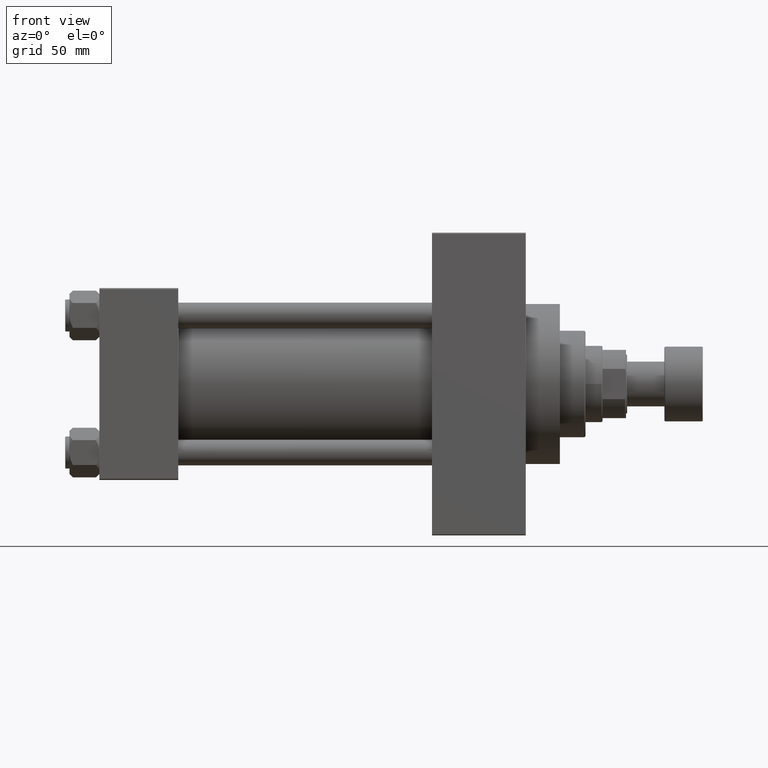
[diagram: clean part render]
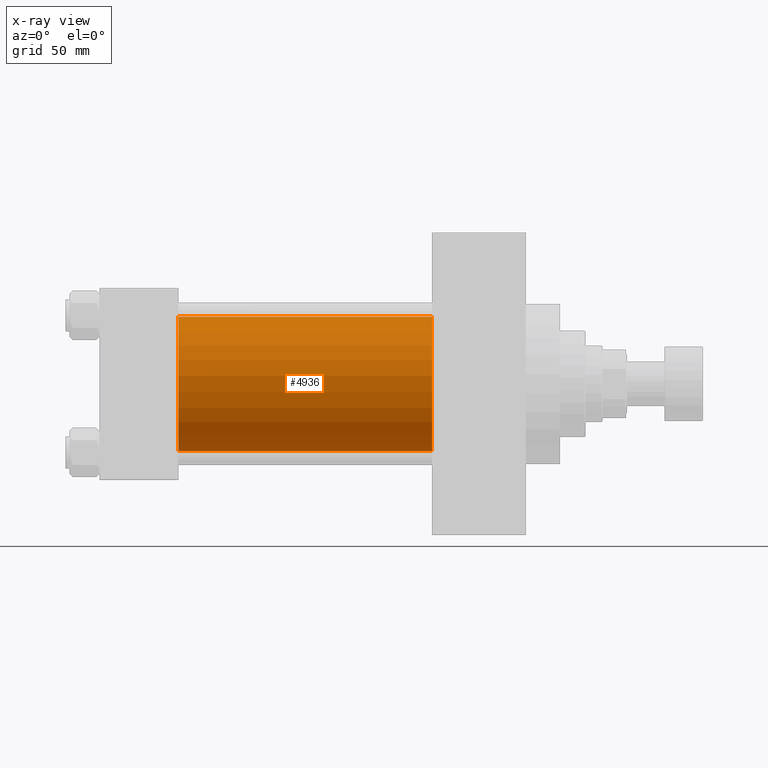
[diagram: x-ray — body ghosted, one internal face saturated and labeled with its STEP entity id]
A machine part, front view, then the same camera in x-ray: the body is ghosted and one INTERNAL B-rep face — a face not visible from any outside direction — is saturated and labeled: STEP entity #4936.
In plain terms, the highlighted cylindrical surface (partial cylindrical patch) has radius 31.5 mm, axis along (-1, -0, -0).
Its self-contained STEP definition (entity closure, byte-faithful):
#91 = CARTESIAN_POINT ( 'NONE',  ( 37.00000000000000000, 1.255552203348951850E-15, -31.50000000000000000 ) ) ;
#3938 = CARTESIAN_POINT ( 'NONE',  ( 156.0000000000000000, -2.602085213965210642E-15, 31.50000000000000000 ) ) ;
#4574 = LINE ( 'NONE', #12273, #33680 ) ;
#4936 = ADVANCED_FACE ( 'NONE', ( #31605 ), #9411, .F. ) ;
#5570 = CIRCLE ( 'NONE', #14782, 31.50000000000000000 ) ;
#9411 = CYLINDRICAL_SURFACE ( 'NONE', #41859, 31.50000000000000000 ) ;
#9890 = CARTESIAN_POINT ( 'NONE',  ( 156.0000000000000000, -2.602085213965210642E-15, 0.000000000000000000 ) ) ;
#11205 = VERTEX_POINT ( 'NONE', #3938 ) ;
#11244 = VERTEX_POINT ( 'NONE', #91 ) ;
#12273 = CARTESIAN_POINT ( 'NONE',  ( 156.0000000000000000, -2.602085213965210642E-15, 31.50000000000000000 ) ) ;
#13173 = CIRCLE ( 'NONE', #23946, 31.50000000000000000 ) ;
#14782 = AXIS2_PLACEMENT_3D ( 'NONE', #23947, #42053, #30476 ) ;
#16107 = ORIENTED_EDGE ( 'NONE', *, *, #36396, .T. ) ;
#16566 = ORIENTED_EDGE ( 'NONE', *, *, #20256, .F. ) ;
#19030 = VECTOR ( 'NONE', #37909, 1000.000000000000000 ) ;
#20256 = EDGE_CURVE ( 'NONE', #11205, #40197, #4574, .T. ) ;
#21876 = ORIENTED_EDGE ( 'NONE', *, *, #33071, .F. ) ;
#22479 = CARTESIAN_POINT ( 'NONE',  ( 156.0000000000000000, 1.255552203348951850E-15, -31.50000000000000000 ) ) ;
#22738 = CARTESIAN_POINT ( 'NONE',  ( 156.0000000000000000, 1.255552203348951850E-15, -31.50000000000000000 ) ) ;
#22957 = LINE ( 'NONE', #22479, #19030 ) ;
#23946 = AXIS2_PLACEMENT_3D ( 'NONE', #38129, #38615, #41982 ) ;
#23947 = CARTESIAN_POINT ( 'NONE',  ( 156.0000000000000000, -2.602085213965210642E-15, 0.000000000000000000 ) ) ;
#24719 = EDGE_LOOP ( 'NONE', ( #16107, #36325, #21876, #16566 ) ) ;
#24839 = VERTEX_POINT ( 'NONE', #22738 ) ;
#26038 = DIRECTION ( 'NONE',  ( -1.000000000000000000, -0.000000000000000000, -0.000000000000000000 ) ) ;
#30476 = DIRECTION ( 'NONE',  ( 0.000000000000000000, 0.000000000000000000, -1.000000000000000000 ) ) ;
#31605 = FACE_OUTER_BOUND ( 'NONE', #24719, .T. ) ;
#33071 = EDGE_CURVE ( 'NONE', #40197, #11244, #13173, .T. ) ;
#33680 = VECTOR ( 'NONE', #26038, 1000.000000000000000 ) ;
#36325 = ORIENTED_EDGE ( 'NONE', *, *, #47267, .T. ) ;
#36396 = EDGE_CURVE ( 'NONE', #11205, #24839, #5570, .T. ) ;
#37909 = DIRECTION ( 'NONE',  ( -1.000000000000000000, -0.000000000000000000, -0.000000000000000000 ) ) ;
#38129 = CARTESIAN_POINT ( 'NONE',  ( 37.00000000000000000, -2.602085213965210642E-15, 0.000000000000000000 ) ) ;
#38615 = DIRECTION ( 'NONE',  ( 1.000000000000000000, 0.000000000000000000, 0.000000000000000000 ) ) ;
#40197 = VERTEX_POINT ( 'NONE', #43910 ) ;
#41859 = AXIS2_PLACEMENT_3D ( 'NONE', #9890, #46304, #45826 ) ;
#41982 = DIRECTION ( 'NONE',  ( 0.000000000000000000, 0.000000000000000000, -1.000000000000000000 ) ) ;
#42053 = DIRECTION ( 'NONE',  ( 1.000000000000000000, 0.000000000000000000, 0.000000000000000000 ) ) ;
#43910 = CARTESIAN_POINT ( 'NONE',  ( 37.00000000000000000, -2.602085213965210642E-15, 31.50000000000000000 ) ) ;
#45826 = DIRECTION ( 'NONE',  ( 0.000000000000000000, 0.000000000000000000, 1.000000000000000000 ) ) ;
#46304 = DIRECTION ( 'NONE',  ( -1.000000000000000000, -0.000000000000000000, -0.000000000000000000 ) ) ;
#47267 = EDGE_CURVE ( 'NONE', #24839, #11244, #22957, .T. ) ;